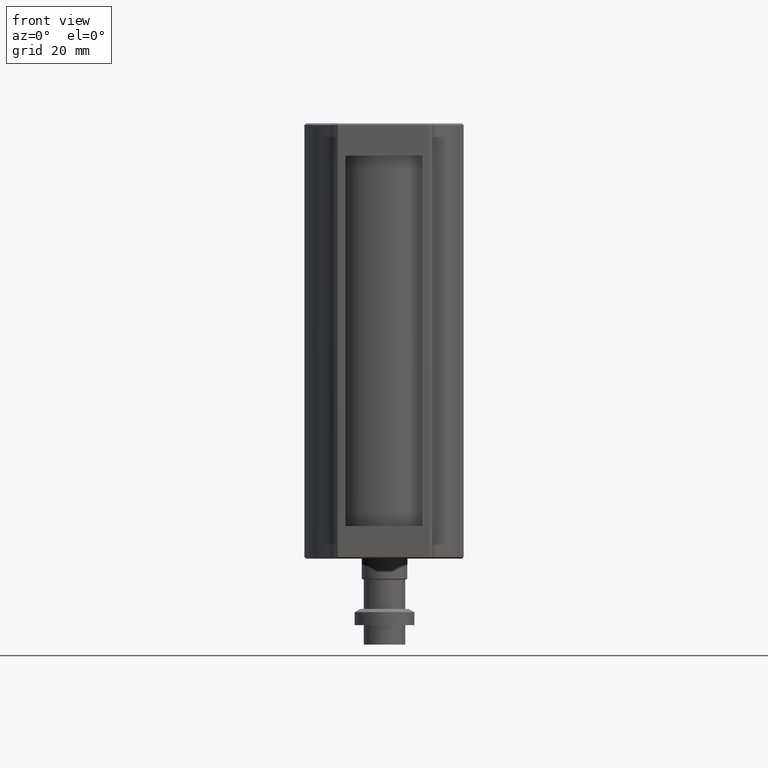
[diagram: clean part render]
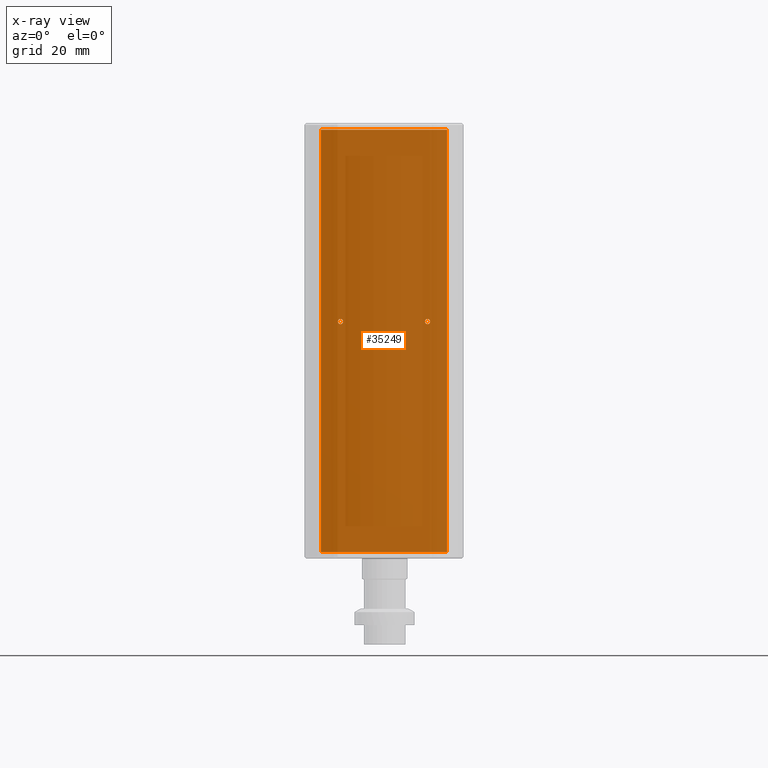
[diagram: x-ray — body ghosted, one internal face saturated and labeled with its STEP entity id]
A machine part, front view, then the same camera in x-ray: the body is ghosted and one INTERNAL B-rep face — a face not visible from any outside direction — is saturated and labeled: STEP entity #35249.
In plain terms, the highlighted planar face has unit normal (-0, 1, 0).
Its self-contained STEP definition (entity closure, byte-faithful):
#345 = ORIENTED_EDGE ( 'NONE', *, *, #13017, .F. ) ;
#881 = VECTOR ( 'NONE', #23228, 1000.000000000000000 ) ;
#4086 = DIRECTION ( 'NONE',  ( -0.0000000000000000000, -1.000000000000000000, -0.0000000000000000000 ) ) ;
#4985 = AXIS2_PLACEMENT_3D ( 'NONE', #69683, #25887, #19626 ) ;
#5302 = VECTOR ( 'NONE', #21414, 1000.000000000000000 ) ;
#6629 = EDGE_CURVE ( 'NONE', #71250, #28635, #32460, .T. ) ;
#9809 = EDGE_LOOP ( 'NONE', ( #65745, #43320, #72122, #62858 ) ) ;
#10188 = EDGE_LOOP ( 'NONE', ( #47028, #48425 ) ) ;
#10611 = DIRECTION ( 'NONE',  ( 0.0000000000000000000, 0.0000000000000000000, -1.000000000000000000 ) ) ;
#11357 = FACE_OUTER_BOUND ( 'NONE', #9809, .T. ) ;
#11461 = CARTESIAN_POINT ( 'NONE',  ( -24.16201180637542800, -2.995475796930334900, 5.949999999999994800 ) ) ;
#13017 = EDGE_CURVE ( 'NONE', #28635, #71250, #36649, .T. ) ;
#13309 = DIRECTION ( 'NONE',  ( 0.0000000000000000000, 0.0000000000000000000, -1.000000000000000000 ) ) ;
#14578 = VERTEX_POINT ( 'NONE', #21332 ) ;
#15627 = LINE ( 'NONE', #22972, #881 ) ;
#18186 = DIRECTION ( 'NONE',  ( -0.0000000000000000000, -1.000000000000000000, -0.0000000000000000000 ) ) ;
#18728 = CARTESIAN_POINT ( 'NONE',  ( -18.16201180637543900, -2.995475796930332700, 65.00000000000000000 ) ) ;
#19077 = DIRECTION ( 'NONE',  ( 0.0000000000000000000, 0.0000000000000000000, 1.000000000000000000 ) ) ;
#19112 = FACE_BOUND ( 'NONE', #10188, .T. ) ;
#19626 = DIRECTION ( 'NONE',  ( -1.000000000000000000, -1.269309860470834500E-016, 0.0000000000000000000 ) ) ;
#20039 = LINE ( 'NONE', #71241, #5302 ) ;
#21332 = CARTESIAN_POINT ( 'NONE',  ( -24.16201180637542800, -2.995475796930334900, 6.749999999999989300 ) ) ;
#21407 = EDGE_CURVE ( 'NONE', #33582, #14578, #23086, .T. ) ;
#21414 = DIRECTION ( 'NONE',  ( -1.000000000000000000, -0.0000000000000000000, -0.0000000000000000000 ) ) ;
#22972 = CARTESIAN_POINT ( 'NONE',  ( -37.56201180637544500, -2.995475796930334900, 65.00000000000000000 ) ) ;
#23086 = CIRCLE ( 'NONE', #61787, 0.7999999999999942700 ) ;
#23228 = DIRECTION ( 'NONE',  ( 1.000000000000000000, 1.269309860470834500E-016, -0.0000000000000000000 ) ) ;
#25887 = DIRECTION ( 'NONE',  ( -1.269309860470834500E-016, 1.000000000000000000, 0.0000000000000000000 ) ) ;
#28635 = VERTEX_POINT ( 'NONE', #36552 ) ;
#29511 = CIRCLE ( 'NONE', #61048, 0.7999999999999942700 ) ;
#31436 = VERTEX_POINT ( 'NONE', #51811 ) ;
#32460 = CIRCLE ( 'NONE', #70406, 0.7999999999999942700 ) ;
#33582 = VERTEX_POINT ( 'NONE', #47115 ) ;
#34965 = VERTEX_POINT ( 'NONE', #50287 ) ;
#35249 = ADVANCED_FACE ( 'NONE', ( #11357, #19112, #35610 ), #57770, .F. ) ;
#35329 = CARTESIAN_POINT ( 'NONE',  ( -56.96201180637545000, -2.995475796930337600, 65.00000000000000000 ) ) ;
#35610 = FACE_BOUND ( 'NONE', #53705, .T. ) ;
#36552 = CARTESIAN_POINT ( 'NONE',  ( -50.96201180637547900, -2.995475796930338500, 6.749999999999978700 ) ) ;
#36649 = CIRCLE ( 'NONE', #64165, 0.7999999999999942700 ) ;
#37080 = VERTEX_POINT ( 'NONE', #65013 ) ;
#39222 = CARTESIAN_POINT ( 'NONE',  ( -50.96201180637547900, -2.995475796930338500, 5.149999999999990600 ) ) ;
#39572 = DIRECTION ( 'NONE',  ( 0.0000000000000000000, 0.0000000000000000000, -1.000000000000000000 ) ) ;
#39872 = VECTOR ( 'NONE', #19077, 1000.000000000000000 ) ;
#39875 = EDGE_CURVE ( 'NONE', #37080, #45865, #15627, .T. ) ;
#43320 = ORIENTED_EDGE ( 'NONE', *, *, #52911, .F. ) ;
#44988 = DIRECTION ( 'NONE',  ( -0.0000000000000000000, -1.000000000000000000, -0.0000000000000000000 ) ) ;
#45865 = VERTEX_POINT ( 'NONE', #55549 ) ;
#47028 = ORIENTED_EDGE ( 'NONE', *, *, #21407, .F. ) ;
#47115 = CARTESIAN_POINT ( 'NONE',  ( -24.16201180637542800, -2.995475796930334900, 5.150000000000001200 ) ) ;
#48425 = ORIENTED_EDGE ( 'NONE', *, *, #52175, .F. ) ;
#48679 = VECTOR ( 'NONE', #57596, 1000.000000000000000 ) ;
#50287 = CARTESIAN_POINT ( 'NONE',  ( -18.16201180637543900, -2.995475796930334900, -65.00000000000000000 ) ) ;
#50435 = LINE ( 'NONE', #18728, #48679 ) ;
#51811 = CARTESIAN_POINT ( 'NONE',  ( -56.96201180637545000, -2.995475796930337600, -65.00000000000000000 ) ) ;
#52175 = EDGE_CURVE ( 'NONE', #14578, #33582, #29511, .T. ) ;
#52911 = EDGE_CURVE ( 'NONE', #31436, #37080, #58170, .T. ) ;
#53085 = ORIENTED_EDGE ( 'NONE', *, *, #6629, .F. ) ;
#53705 = EDGE_LOOP ( 'NONE', ( #53085, #345 ) ) ;
#55549 = CARTESIAN_POINT ( 'NONE',  ( -18.16201180637543900, -2.995475796930333600, 65.00000000000000000 ) ) ;
#55903 = DIRECTION ( 'NONE',  ( 0.0000000000000000000, 0.0000000000000000000, -1.000000000000000000 ) ) ;
#56375 = DIRECTION ( 'NONE',  ( -0.0000000000000000000, -1.000000000000000000, -0.0000000000000000000 ) ) ;
#57051 = CARTESIAN_POINT ( 'NONE',  ( -50.96201180637547900, -2.995475796930338500, 5.949999999999985100 ) ) ;
#57596 = DIRECTION ( 'NONE',  ( -0.0000000000000000000, -0.0000000000000000000, -1.000000000000000000 ) ) ;
#57770 = PLANE ( 'NONE',  #4985 ) ;
#58170 = LINE ( 'NONE', #35329, #39872 ) ;
#58755 = EDGE_CURVE ( 'NONE', #45865, #34965, #50435, .T. ) ;
#60422 = CARTESIAN_POINT ( 'NONE',  ( -24.16201180637542800, -2.995475796930334900, 5.949999999999994800 ) ) ;
#61048 = AXIS2_PLACEMENT_3D ( 'NONE', #11461, #44988, #39572 ) ;
#61787 = AXIS2_PLACEMENT_3D ( 'NONE', #60422, #4086, #10611 ) ;
#62858 = ORIENTED_EDGE ( 'NONE', *, *, #58755, .F. ) ;
#63992 = EDGE_CURVE ( 'NONE', #34965, #31436, #20039, .T. ) ;
#64165 = AXIS2_PLACEMENT_3D ( 'NONE', #57051, #18186, #13309 ) ;
#65013 = CARTESIAN_POINT ( 'NONE',  ( -56.96201180637545000, -2.995475796930337600, 65.00000000000000000 ) ) ;
#65745 = ORIENTED_EDGE ( 'NONE', *, *, #39875, .F. ) ;
#68034 = CARTESIAN_POINT ( 'NONE',  ( -50.96201180637547900, -2.995475796930338500, 5.949999999999985100 ) ) ;
#69683 = CARTESIAN_POINT ( 'NONE',  ( -37.56201180637544500, -2.995475796930334900, 65.00000000000000000 ) ) ;
#70406 = AXIS2_PLACEMENT_3D ( 'NONE', #68034, #56375, #55903 ) ;
#71241 = CARTESIAN_POINT ( 'NONE',  ( -37.56201180637544500, -2.995475796930337600, -65.00000000000000000 ) ) ;
#71250 = VERTEX_POINT ( 'NONE', #39222 ) ;
#72122 = ORIENTED_EDGE ( 'NONE', *, *, #63992, .F. ) ;